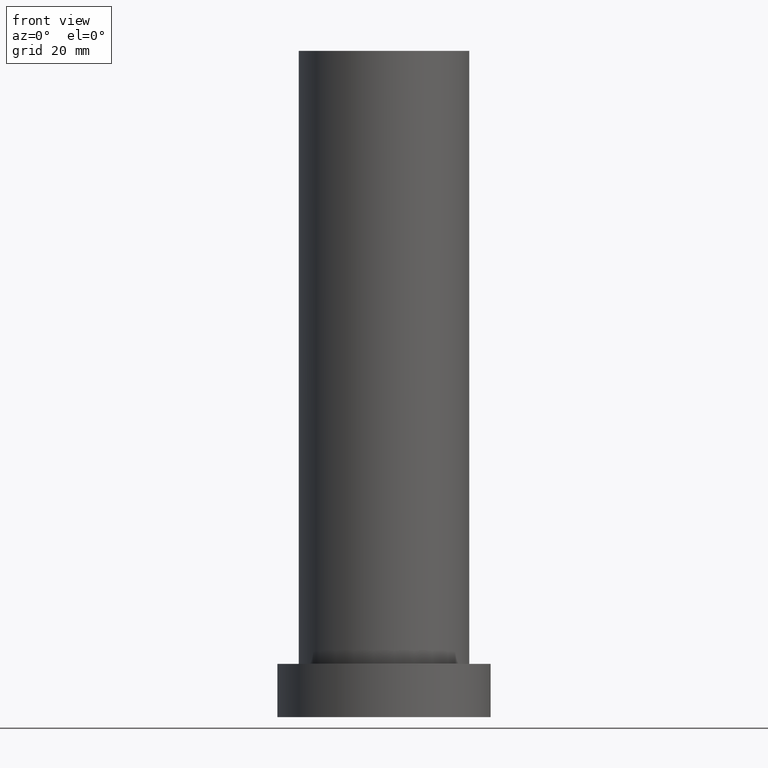
[diagram: clean part render]
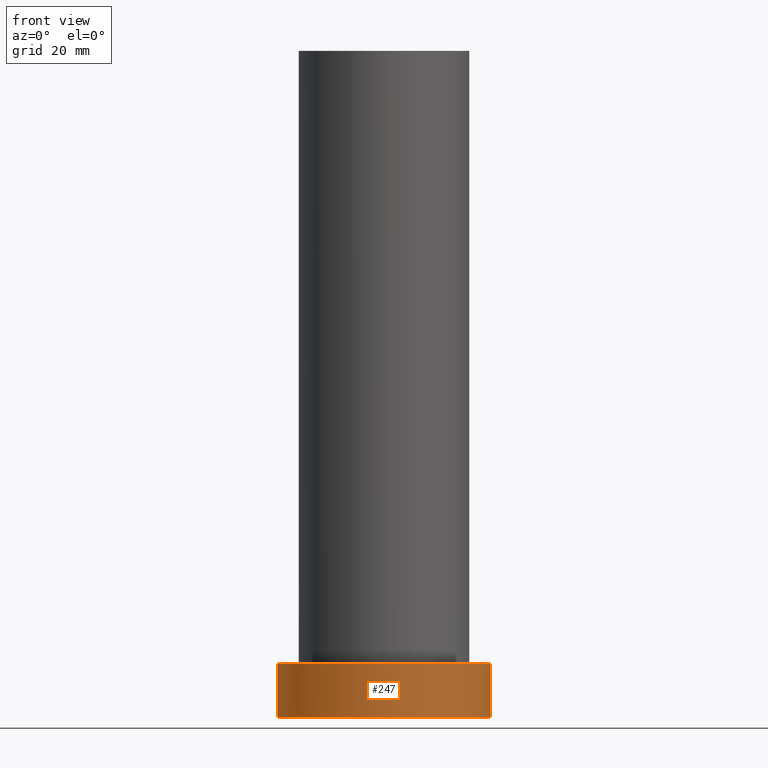
[diagram: same view with one face highlighted and labeled with its STEP entity id]
A machine part, front view. The second image highlights one B-rep face of the part: STEP entity #247.
In plain terms, the highlighted cylindrical surface (partial cylindrical patch) has radius 20 mm, axis along (-0, -0, -1).
Its self-contained STEP definition (entity closure, byte-faithful):
#1 = DIRECTION ( 'NONE',  ( 0.000000000000000000, 0.000000000000000000, 1.000000000000000000 ) ) ;
#6 = CARTESIAN_POINT ( 'NONE',  ( 0.000000000000000000, 0.000000000000000000, 10.00000000000000000 ) ) ;
#15 = ORIENTED_EDGE ( 'NONE', *, *, #56, .F. ) ;
#16 = CARTESIAN_POINT ( 'NONE',  ( 20.00000000000000000, 2.449293598294706513E-15, 10.00000000000000000 ) ) ;
#20 = ORIENTED_EDGE ( 'NONE', *, *, #241, .T. ) ;
#26 = VERTEX_POINT ( 'NONE', #16 ) ;
#33 = LINE ( 'NONE', #162, #84 ) ;
#38 = EDGE_LOOP ( 'NONE', ( #15, #129, #20, #196 ) ) ;
#44 = CARTESIAN_POINT ( 'NONE',  ( -20.00000000000000000, 0.000000000000000000, 10.00000000000000000 ) ) ;
#56 = EDGE_CURVE ( 'NONE', #26, #215, #33, .T. ) ;
#65 = DIRECTION ( 'NONE',  ( -0.000000000000000000, -0.000000000000000000, -1.000000000000000000 ) ) ;
#72 = EDGE_CURVE ( 'NONE', #85, #215, #179, .T. ) ;
#84 = VECTOR ( 'NONE', #242, 1000.000000000000000 ) ;
#85 = VERTEX_POINT ( 'NONE', #109 ) ;
#93 = DIRECTION ( 'NONE',  ( -0.000000000000000000, -0.000000000000000000, -1.000000000000000000 ) ) ;
#96 = VECTOR ( 'NONE', #65, 1000.000000000000000 ) ;
#108 = CYLINDRICAL_SURFACE ( 'NONE', #197, 20.00000000000000000 ) ;
#109 = CARTESIAN_POINT ( 'NONE',  ( -20.00000000000000000, 0.000000000000000000, 0.000000000000000000 ) ) ;
#119 = VERTEX_POINT ( 'NONE', #148 ) ;
#125 = CIRCLE ( 'NONE', #244, 20.00000000000000000 ) ;
#128 = FACE_OUTER_BOUND ( 'NONE', #38, .T. ) ;
#129 = ORIENTED_EDGE ( 'NONE', *, *, #181, .F. ) ;
#130 = CARTESIAN_POINT ( 'NONE',  ( 0.000000000000000000, 0.000000000000000000, 10.00000000000000000 ) ) ;
#146 = CARTESIAN_POINT ( 'NONE',  ( 0.000000000000000000, 0.000000000000000000, 0.000000000000000000 ) ) ;
#148 = CARTESIAN_POINT ( 'NONE',  ( -20.00000000000000000, 0.000000000000000000, 10.00000000000000000 ) ) ;
#162 = CARTESIAN_POINT ( 'NONE',  ( 20.00000000000000000, 2.449293598294706513E-15, 10.00000000000000000 ) ) ;
#167 = CARTESIAN_POINT ( 'NONE',  ( 20.00000000000000000, 2.449293598294706513E-15, 0.000000000000000000 ) ) ;
#179 = CIRCLE ( 'NONE', #216, 20.00000000000000000 ) ;
#181 = EDGE_CURVE ( 'NONE', #119, #26, #125, .T. ) ;
#182 = LINE ( 'NONE', #44, #96 ) ;
#183 = DIRECTION ( 'NONE',  ( 0.000000000000000000, 0.000000000000000000, 1.000000000000000000 ) ) ;
#184 = DIRECTION ( 'NONE',  ( 1.000000000000000000, 0.000000000000000000, 0.000000000000000000 ) ) ;
#196 = ORIENTED_EDGE ( 'NONE', *, *, #72, .T. ) ;
#197 = AXIS2_PLACEMENT_3D ( 'NONE', #6, #93, #248 ) ;
#208 = DIRECTION ( 'NONE',  ( 1.000000000000000000, 0.000000000000000000, 0.000000000000000000 ) ) ;
#215 = VERTEX_POINT ( 'NONE', #167 ) ;
#216 = AXIS2_PLACEMENT_3D ( 'NONE', #146, #1, #184 ) ;
#241 = EDGE_CURVE ( 'NONE', #119, #85, #182, .T. ) ;
#242 = DIRECTION ( 'NONE',  ( -0.000000000000000000, -0.000000000000000000, -1.000000000000000000 ) ) ;
#244 = AXIS2_PLACEMENT_3D ( 'NONE', #130, #183, #208 ) ;
#247 = ADVANCED_FACE ( 'NONE', ( #128 ), #108, .T. ) ;
#248 = DIRECTION ( 'NONE',  ( -1.000000000000000000, 0.000000000000000000, 0.000000000000000000 ) ) ;